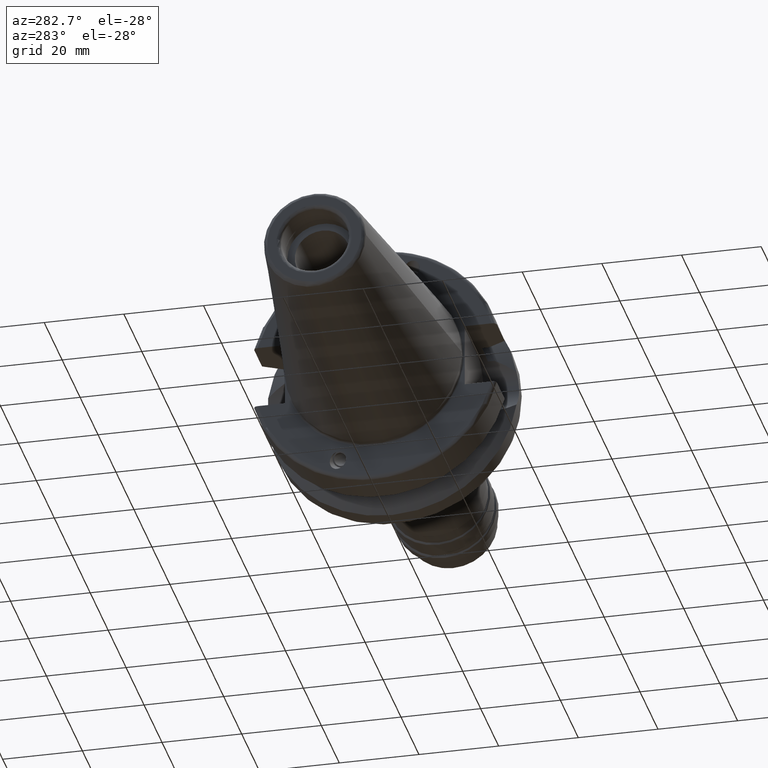
[diagram: clean part render]
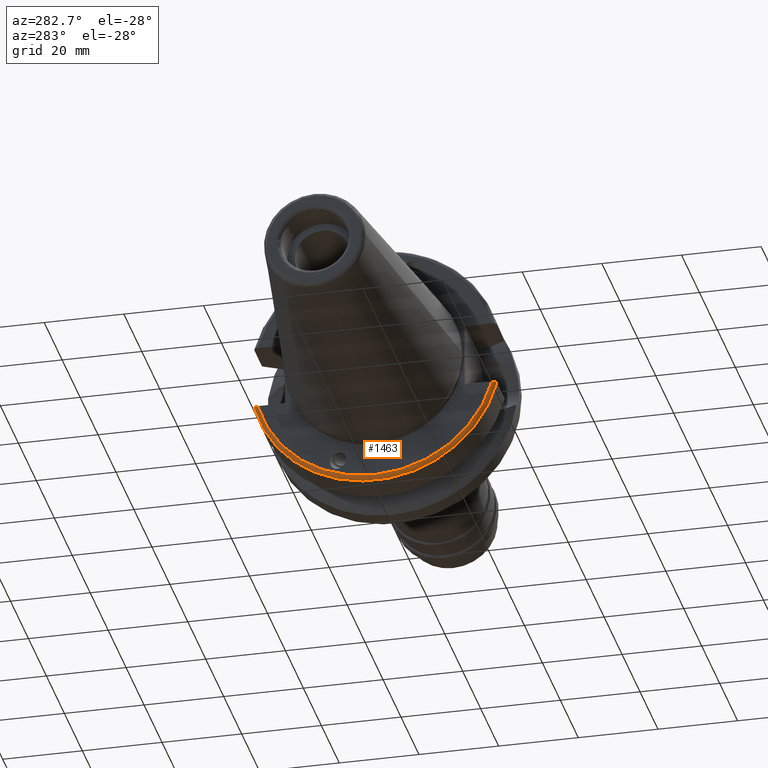
[diagram: same view with one face highlighted and labeled with its STEP entity id]
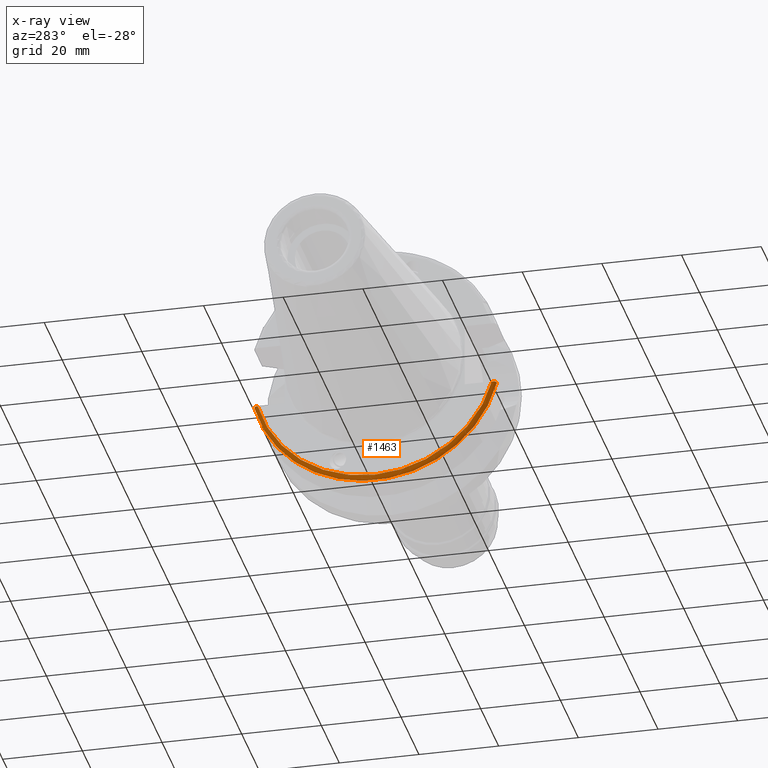
[diagram: x-ray of the same camera — body ghosted, the highlighted face saturated]
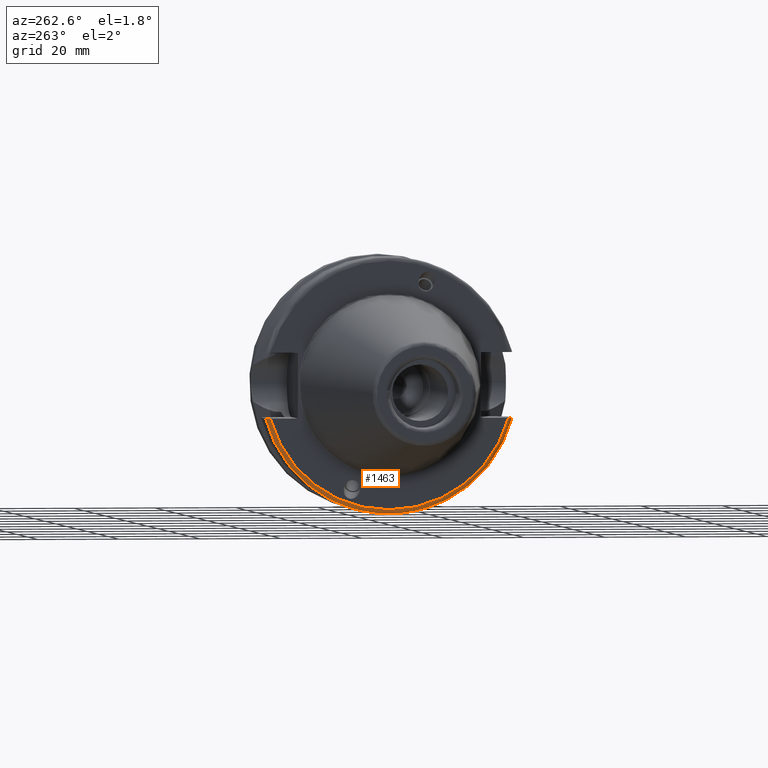
[diagram: same view with one face highlighted and labeled with its STEP entity id]
A machine part, auxiliary view. The second image highlights one B-rep face of the part: STEP entity #1463.
The next image is the same camera in x-ray: the body ghosted, the highlighted face saturated — about 0% of this face is hidden behind the body in this view.
A second angle (auxiliary view) of the same face is appended — the face is thin or edge-on in the first view.
In plain terms, the highlighted toroidal blend (fillet) surface has major radius 30.5 mm and minor (blend) radius 1 mm.
Its self-contained STEP definition (entity closure, byte-faithful):
#69=TOROIDAL_SURFACE('',#1665,30.5,1.00000000000001);
#108=B_SPLINE_CURVE_WITH_KNOTS('',3,(#2686,#2687,#2688,#2689,#2690,#2691,
#2692,#2693,#2694,#2695),.UNSPECIFIED.,.F.,.F.,(4,2,2,2,4),(0.,0.0366169489027566,
0.0738743445372396,0.111946181815504,0.150751871388631),.UNSPECIFIED.);
#112=B_SPLINE_CURVE_WITH_KNOTS('',3,(#2766,#2767,#2768,#2769,#2770,#2771,
#2772,#2773,#2774,#2775),.UNSPECIFIED.,.F.,.F.,(4,2,2,2,4),(-0.150751871388631,
-0.111946181815504,-0.0738743445372396,-0.0366169489027566,0.),
 .UNSPECIFIED.);
#215=FACE_OUTER_BOUND('',#315,.T.);
#315=EDGE_LOOP('',(#1252,#1253,#1254,#1255));
#562=CIRCLE('',#1664,31.5);
#563=CIRCLE('',#1666,30.5);
#684=VERTEX_POINT('',#2683);
#685=VERTEX_POINT('',#2685);
#698=VERTEX_POINT('',#2760);
#699=VERTEX_POINT('',#2764);
#871=EDGE_CURVE('',#685,#684,#108,.T.);
#893=EDGE_CURVE('',#685,#698,#562,.T.);
#895=EDGE_CURVE('',#684,#699,#563,.T.);
#896=EDGE_CURVE('',#699,#698,#112,.T.);
#1252=ORIENTED_EDGE('',*,*,#871,.T.);
#1253=ORIENTED_EDGE('',*,*,#895,.T.);
#1254=ORIENTED_EDGE('',*,*,#896,.T.);
#1255=ORIENTED_EDGE('',*,*,#893,.F.);
#1463=ADVANCED_FACE('',(#215),#69,.T.);
#1664=AXIS2_PLACEMENT_3D('',#2761,#2080,#2081);
#1665=AXIS2_PLACEMENT_3D('',#2763,#2083,#2084);
#1666=AXIS2_PLACEMENT_3D('',#2765,#2085,#2086);
#2080=DIRECTION('center_axis',(1.,0.,0.));
#2081=DIRECTION('ref_axis',(0.,0.,-1.));
#2083=DIRECTION('center_axis',(1.,0.,0.));
#2084=DIRECTION('ref_axis',(0.,0.,-1.));
#2085=DIRECTION('center_axis',(1.,0.,0.));
#2086=DIRECTION('ref_axis',(0.,0.,-1.));
#2683=CARTESIAN_POINT('',(1.99999999999999,-29.4184890842477,-8.05));
#2685=CARTESIAN_POINT('',(2.99999999999999,-30.4540227227866,-8.05));
#2686=CARTESIAN_POINT('Ctrl Pts',(3.,-30.4540227227866,-8.05));
#2687=CARTESIAN_POINT('Ctrl Pts',(2.87794350365748,-30.4540227227866,-8.05));
#2688=CARTESIAN_POINT('Ctrl Pts',(2.73442803339431,-30.4247631098996,-8.05));
#2689=CARTESIAN_POINT('Ctrl Pts',(2.50758665841081,-30.3289456947341,-8.05));
#2690=CARTESIAN_POINT('Ctrl Pts',(2.38465986426588,-30.2446912007727,-8.05));
#2691=CARTESIAN_POINT('Ctrl Pts',(2.2089547883793,-30.0653098968133,-8.05));
#2692=CARTESIAN_POINT('Ctrl Pts',(2.12587454939785,-29.9376810968085,-8.05));
#2693=CARTESIAN_POINT('Ctrl Pts',(2.02950258743517,-29.7002346307938,-8.05));
#2694=CARTESIAN_POINT('Ctrl Pts',(1.99999999999999,-29.5478413828248,-8.05));
#2695=CARTESIAN_POINT('Ctrl Pts',(1.99999999999999,-29.4184890842477,-8.05));
#2760=CARTESIAN_POINT('',(2.99999999999999,30.4540227227866,-8.05));
#2761=CARTESIAN_POINT('Origin',(2.99999999999999,0.,0.));
#2763=CARTESIAN_POINT('Origin',(3.,0.,0.));
#2764=CARTESIAN_POINT('',(1.99999999999999,29.4184890842477,-8.05));
#2765=CARTESIAN_POINT('Origin',(1.99999999999999,0.,0.));
#2766=CARTESIAN_POINT('Ctrl Pts',(1.99999999999999,29.4184890842477,-8.05));
#2767=CARTESIAN_POINT('Ctrl Pts',(1.99999999999999,29.5478413828248,-8.05));
#2768=CARTESIAN_POINT('Ctrl Pts',(2.02950258743517,29.7002346307938,-8.05));
#2769=CARTESIAN_POINT('Ctrl Pts',(2.12587454939785,29.9376810968085,-8.05));
#2770=CARTESIAN_POINT('Ctrl Pts',(2.2089547883793,30.0653098968133,-8.05));
#2771=CARTESIAN_POINT('Ctrl Pts',(2.38465986426588,30.2446912007727,-8.05));
#2772=CARTESIAN_POINT('Ctrl Pts',(2.50758665841081,30.3289456947341,-8.05));
#2773=CARTESIAN_POINT('Ctrl Pts',(2.73442803339431,30.4247631098996,-8.05));
#2774=CARTESIAN_POINT('Ctrl Pts',(2.87794350365748,30.4540227227866,-8.05));
#2775=CARTESIAN_POINT('Ctrl Pts',(3.,30.4540227227866,-8.05));